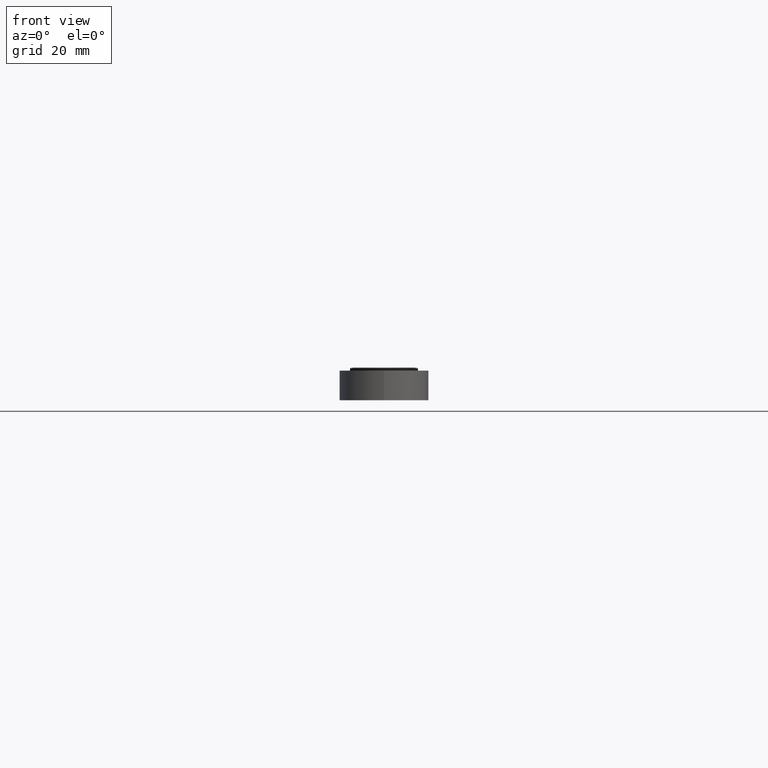
[diagram: clean part render]
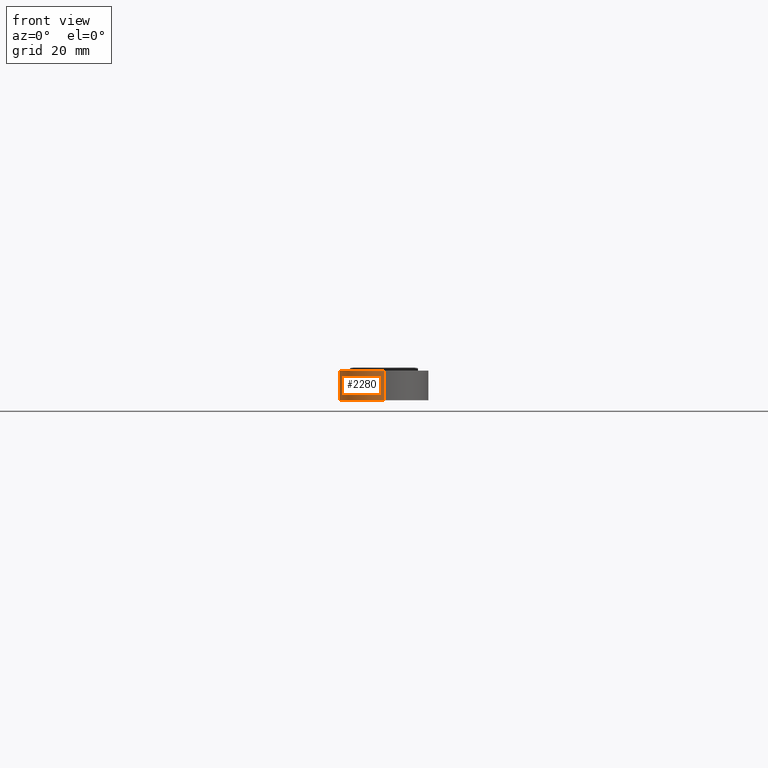
[diagram: same view with one face highlighted and labeled with its STEP entity id]
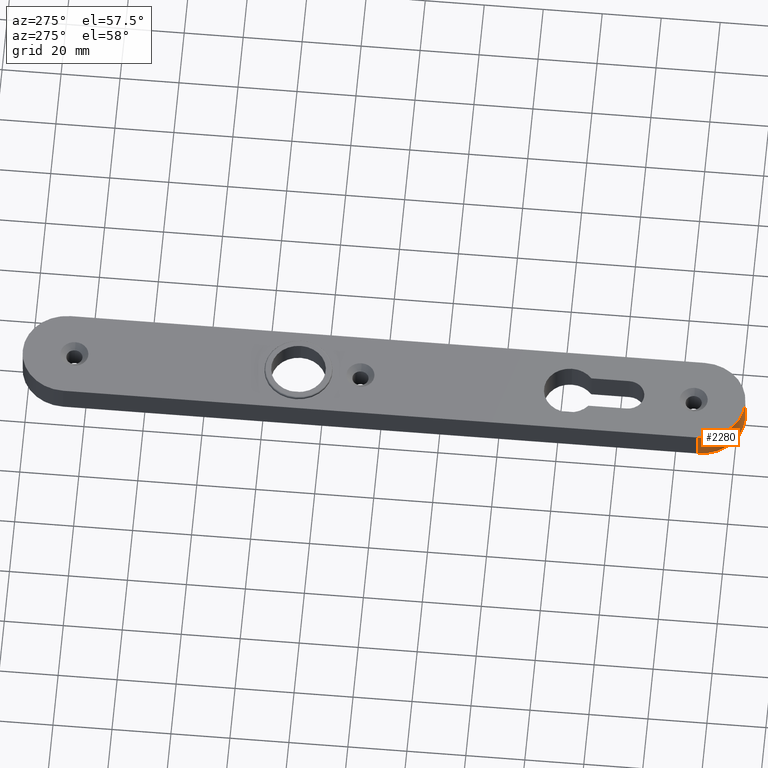
[diagram: same view with one face highlighted and labeled with its STEP entity id]
A machine part, front view. The second image highlights one B-rep face of the part: STEP entity #2280.
A second angle (auxiliary view) of the same face is appended — the face is thin or edge-on in the first view.
In plain terms, the highlighted cylindrical surface (partial cylindrical patch) has radius 15 mm, axis along (0, 0, -1).
Its self-contained STEP definition (entity closure, byte-faithful):
#15 = CYLINDRICAL_SURFACE ( 'NONE', #5516, 15.00000000000000000 ) ;
#108 = CARTESIAN_POINT ( 'NONE',  ( -2.602085213965210642E-14, -122.5000000000000000, 10.00000000000000000 ) ) ;
#1184 = DIRECTION ( 'NONE',  ( 0.000000000000000000, 0.000000000000000000, 1.000000000000000000 ) ) ;
#1215 = CIRCLE ( 'NONE', #6203, 15.00000000000000000 ) ;
#1331 = ORIENTED_EDGE ( 'NONE', *, *, #4462, .F. ) ;
#1402 = CARTESIAN_POINT ( 'NONE',  ( -2.602085213965210642E-14, -107.5000000000000000, 10.00000000000000000 ) ) ;
#1512 = FACE_OUTER_BOUND ( 'NONE', #6451, .T. ) ;
#1627 = CIRCLE ( 'NONE', #5547, 15.00000000000000000 ) ;
#1788 = CARTESIAN_POINT ( 'NONE',  ( -2.602085213965210642E-14, -122.5000000000000000, 0.000000000000000000 ) ) ;
#2280 = ADVANCED_FACE ( 'NONE', ( #1512 ), #15, .T. ) ;
#2884 = DIRECTION ( 'NONE',  ( -0.000000000000000000, -0.000000000000000000, -1.000000000000000000 ) ) ;
#2945 = CARTESIAN_POINT ( 'NONE',  ( -2.602085213965210642E-14, -107.5000000000000000, 10.00000000000000000 ) ) ;
#3209 = VERTEX_POINT ( 'NONE', #7915 ) ;
#3568 = DIRECTION ( 'NONE',  ( -0.000000000000000000, -0.000000000000000000, 1.000000000000000000 ) ) ;
#3792 = ORIENTED_EDGE ( 'NONE', *, *, #6039, .F. ) ;
#3956 = EDGE_CURVE ( 'NONE', #5021, #4990, #1215, .T. ) ;
#4053 = DIRECTION ( 'NONE',  ( -1.000000000000000000, 0.000000000000000000, 0.000000000000000000 ) ) ;
#4186 = CARTESIAN_POINT ( 'NONE',  ( -15.00000000000002487, -107.4999999999999858, 10.00000000000000000 ) ) ;
#4462 = EDGE_CURVE ( 'NONE', #3209, #5021, #9519, .T. ) ;
#4990 = VERTEX_POINT ( 'NONE', #7129 ) ;
#5021 = VERTEX_POINT ( 'NONE', #1788 ) ;
#5133 = VERTEX_POINT ( 'NONE', #4186 ) ;
#5516 = AXIS2_PLACEMENT_3D ( 'NONE', #1402, #7557, #4053 ) ;
#5527 = VECTOR ( 'NONE', #8107, 1000.000000000000000 ) ;
#5547 = AXIS2_PLACEMENT_3D ( 'NONE', #2945, #1184, #7456 ) ;
#6039 = EDGE_CURVE ( 'NONE', #4990, #5133, #8148, .T. ) ;
#6123 = ORIENTED_EDGE ( 'NONE', *, *, #3956, .F. ) ;
#6203 = AXIS2_PLACEMENT_3D ( 'NONE', #10894, #2884, #9080 ) ;
#6451 = EDGE_LOOP ( 'NONE', ( #1331, #9804, #3792, #6123 ) ) ;
#7129 = CARTESIAN_POINT ( 'NONE',  ( -15.00000000000002487, -107.4999999999999858, 0.000000000000000000 ) ) ;
#7456 = DIRECTION ( 'NONE',  ( -1.000000000000000000, 0.000000000000000000, 0.000000000000000000 ) ) ;
#7557 = DIRECTION ( 'NONE',  ( 0.000000000000000000, 0.000000000000000000, -1.000000000000000000 ) ) ;
#7915 = CARTESIAN_POINT ( 'NONE',  ( -2.602085213965210642E-14, -122.5000000000000000, 10.00000000000000000 ) ) ;
#8107 = DIRECTION ( 'NONE',  ( 0.000000000000000000, -0.000000000000000000, -1.000000000000000000 ) ) ;
#8148 = LINE ( 'NONE', #9766, #10209 ) ;
#9080 = DIRECTION ( 'NONE',  ( -1.000000000000000000, 0.000000000000000000, 0.000000000000000000 ) ) ;
#9519 = LINE ( 'NONE', #108, #5527 ) ;
#9766 = CARTESIAN_POINT ( 'NONE',  ( -15.00000000000002487, -107.4999999999999858, 10.00000000000000000 ) ) ;
#9804 = ORIENTED_EDGE ( 'NONE', *, *, #10479, .F. ) ;
#10209 = VECTOR ( 'NONE', #3568, 1000.000000000000000 ) ;
#10479 = EDGE_CURVE ( 'NONE', #5133, #3209, #1627, .T. ) ;
#10894 = CARTESIAN_POINT ( 'NONE',  ( -2.602085213965210642E-14, -107.5000000000000000, 0.000000000000000000 ) ) ;